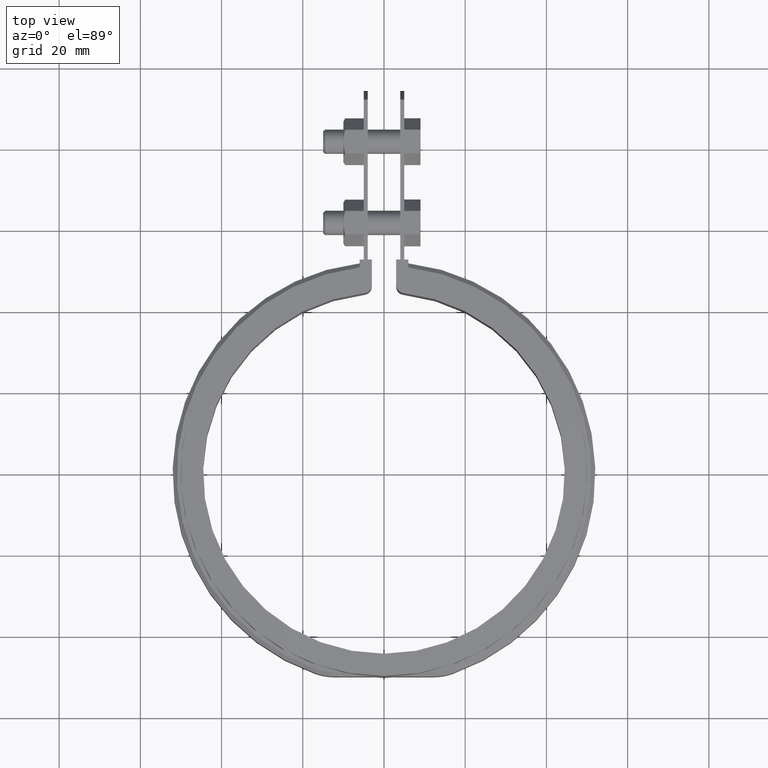
[diagram: clean part render]
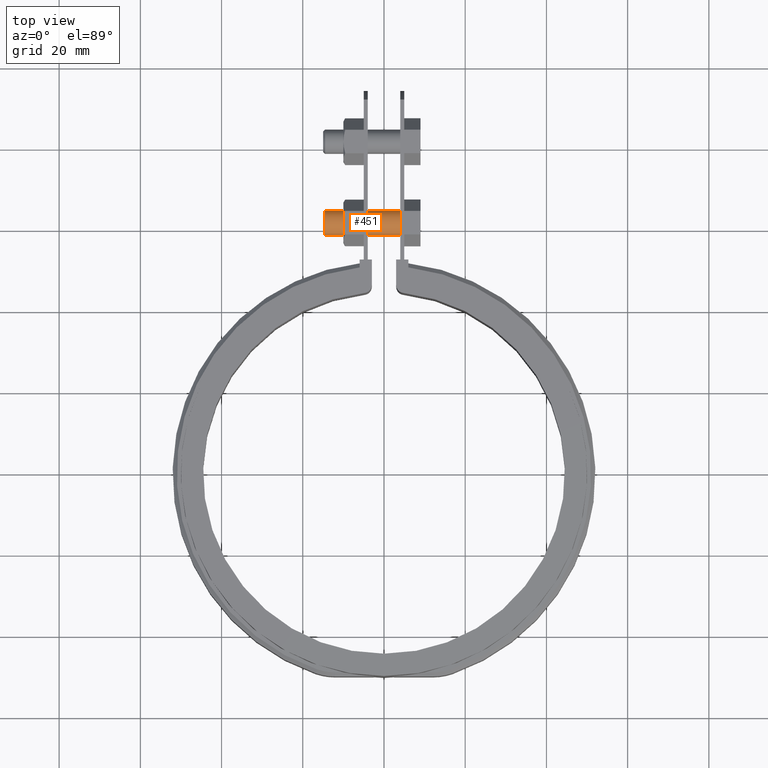
[diagram: same view with one face highlighted and labeled with its STEP entity id]
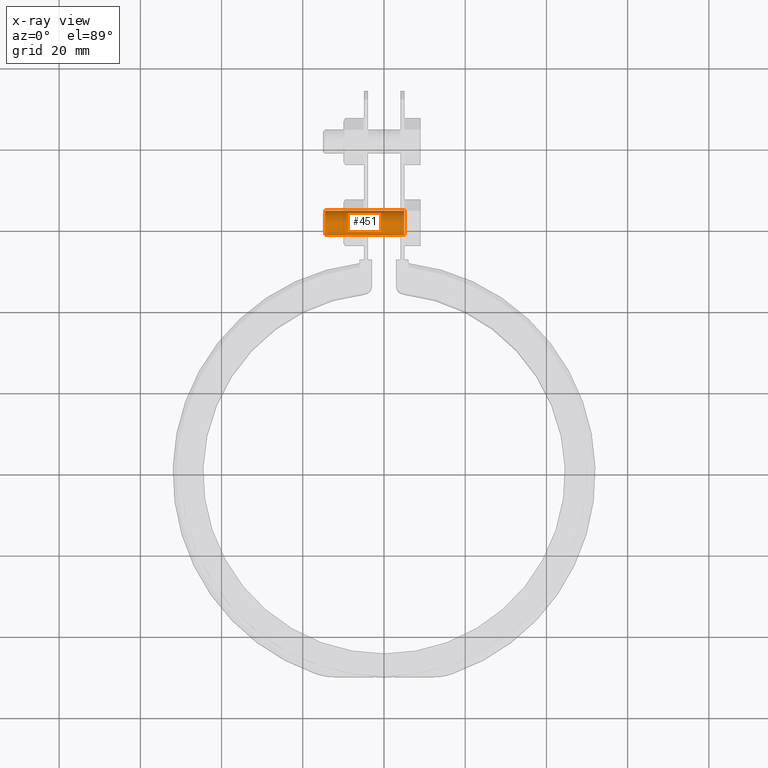
[diagram: x-ray of the same camera — body ghosted, the highlighted face saturated]
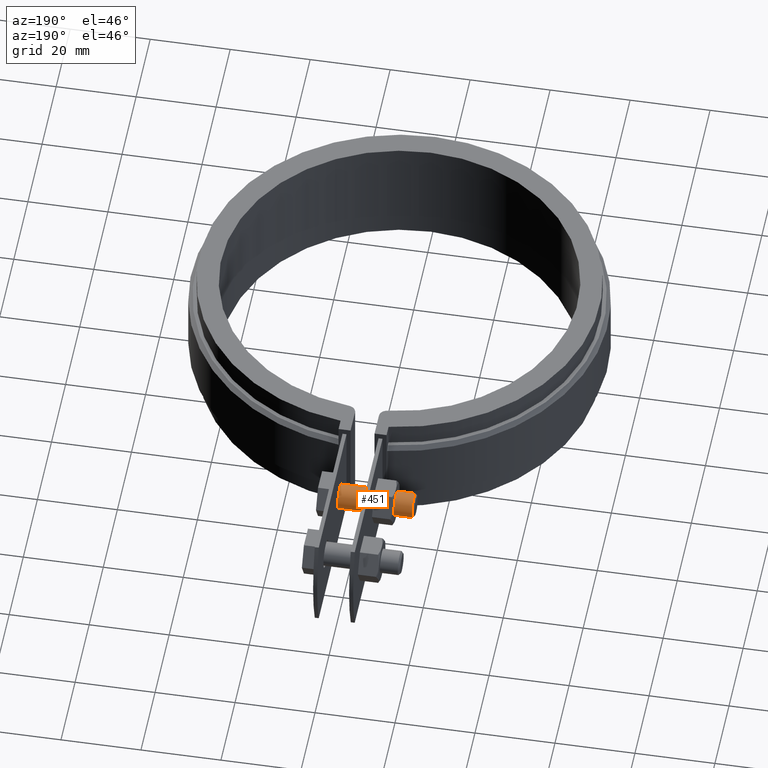
[diagram: same view with one face highlighted and labeled with its STEP entity id]
A machine part, top view. The second image highlights one B-rep face of the part: STEP entity #451.
The next image is the same camera in x-ray: the body ghosted, the highlighted face saturated — about 0% of this face is hidden behind the body in this view.
A second angle (auxiliary view) of the same face is appended — the face is thin or edge-on in the first view.
In plain terms, the highlighted cylindrical surface (bore or boss wall) has radius 3 mm, axis along (1, 0, 0).
Its self-contained STEP definition (entity closure, byte-faithful):
#451 = ADVANCED_FACE( '', ( #800, #801 ), #802, .T. );
#800 = FACE_OUTER_BOUND( '', #1776, .T. );
#801 = FACE_OUTER_BOUND( '', #1777, .T. );
#802 = CYLINDRICAL_SURFACE( '', #1778, 3.00000000000000 );
#1776 = EDGE_LOOP( '', ( #3613 ) );
#1777 = EDGE_LOOP( '', ( #3614 ) );
#1778 = AXIS2_PLACEMENT_3D( '', #3615, #3616, #3617 );
#3613 = ORIENTED_EDGE( '', *, *, #4391, .T. );
#3614 = ORIENTED_EDGE( '', *, *, #4385, .F. );
#3615 = CARTESIAN_POINT( '', ( 13.4487843911358, 61.7863881048233, -7.19910242530373E-014 ) );
#3616 = DIRECTION( '', ( 1.00000000000000, 0.000000000000000, 0.000000000000000 ) );
#3617 = DIRECTION( '', ( 0.000000000000000, -0.866025403784439, 0.500000000000000 ) );
#4385 = EDGE_CURVE( '', #5134, #5134, #5135, .F. );
#4391 = EDGE_CURVE( '', #5144, #5144, #5145, .T. );
#5134 = VERTEX_POINT( '', #7866 );
#5135 = CIRCLE( '', #7867, 3.00000000000000 );
#5144 = VERTEX_POINT( '', #7881 );
#5145 = CIRCLE( '', #7882, 3.00000000000000 );
#7866 = CARTESIAN_POINT( '', ( 4.99999999999996, 59.1883118934699, 1.49999999999993 ) );
#7867 = AXIS2_PLACEMENT_3D( '', #8699, #8700, #8701 );
#7881 = CARTESIAN_POINT( '', ( -14.5000000000000, 64.3844643161766, -1.50000000000007 ) );
#7882 = AXIS2_PLACEMENT_3D( '', #8707, #8708, #8709 );
#8699 = CARTESIAN_POINT( '', ( 4.99999999999996, 61.7863881048233, -7.19910242530373E-014 ) );
#8700 = DIRECTION( '', ( -1.00000000000000, 0.000000000000000, 0.000000000000000 ) );
#8701 = DIRECTION( '', ( 0.000000000000000, -0.866025403784439, 0.500000000000000 ) );
#8707 = CARTESIAN_POINT( '', ( -14.5000000000000, 61.7863881048233, -7.19910242530373E-014 ) );
#8708 = DIRECTION( '', ( 1.00000000000000, 0.000000000000000, 0.000000000000000 ) );
#8709 = DIRECTION( '', ( 0.000000000000000, 0.866025403784439, -0.500000000000000 ) );